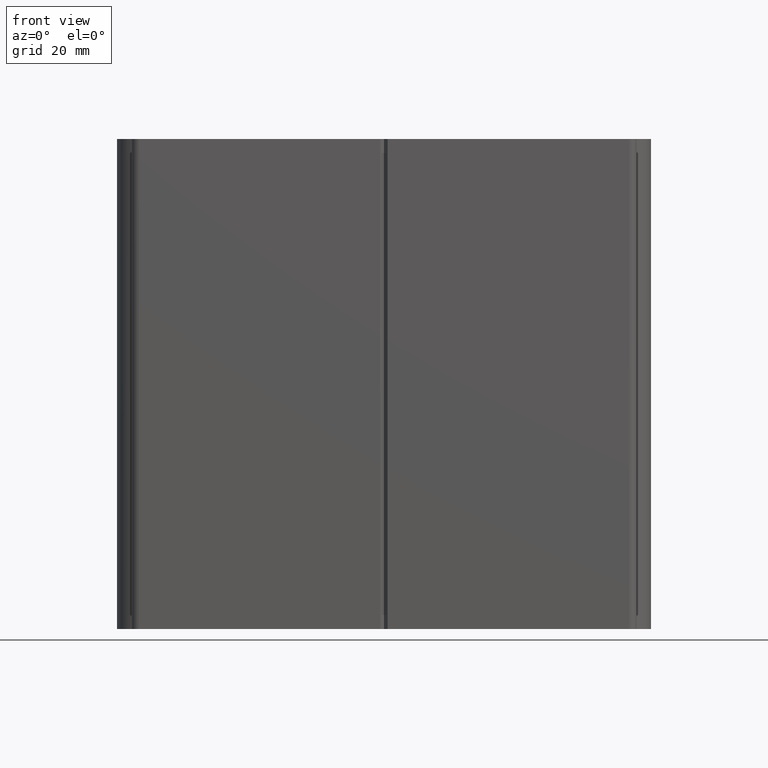
[diagram: clean part render]
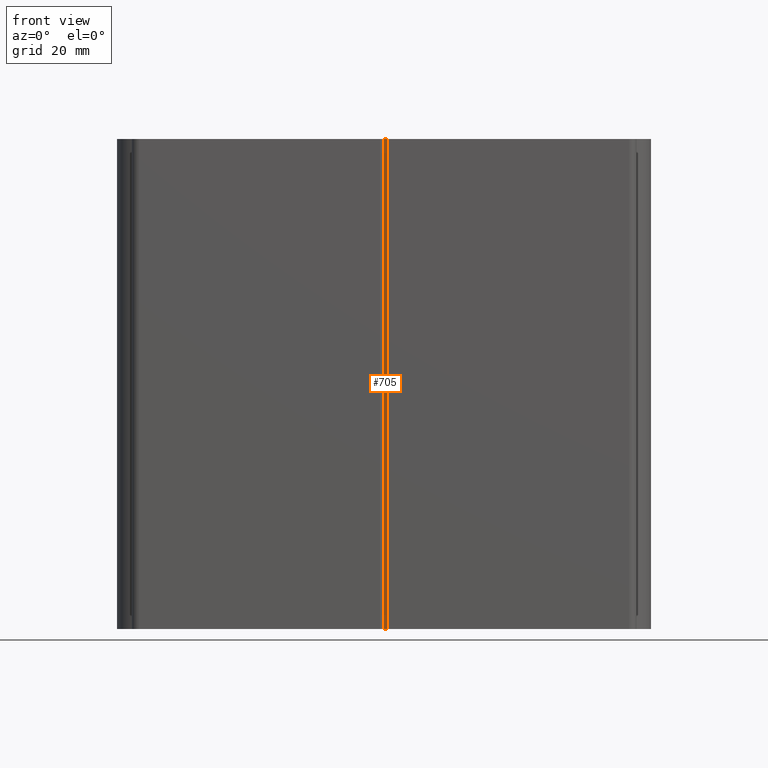
[diagram: same view with one face highlighted and labeled with its STEP entity id]
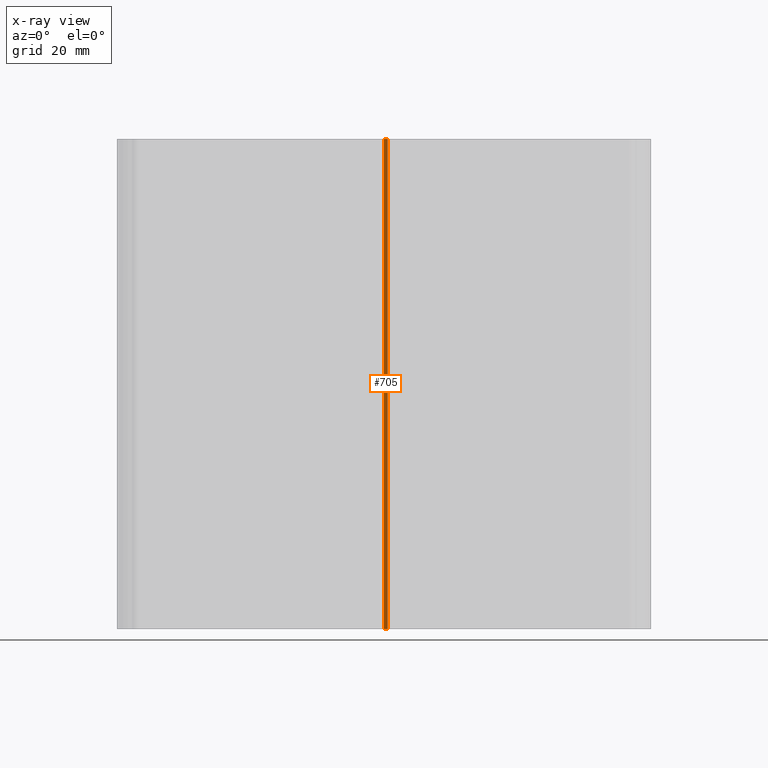
[diagram: x-ray of the same camera — body ghosted, the highlighted face saturated]
A machine part, front view. The second image highlights one B-rep face of the part: STEP entity #705.
The next image is the same camera in x-ray: the body ghosted, the highlighted face saturated — about 0% of this face is hidden behind the body in this view.
In plain terms, the highlighted planar face has unit normal (0.7071, 0.7071, 0).
Its self-contained STEP definition (entity closure, byte-faithful):
#46=PLANE('',#817);
#83=FACE_OUTER_BOUND('',#120,.T.);
#120=EDGE_LOOP('',(#628,#629,#630,#631));
#162=LINE('',#1152,#235);
#173=LINE('',#1180,#246);
#198=LINE('',#1233,#271);
#199=LINE('',#1234,#272);
#235=VECTOR('',#934,10.);
#246=VECTOR('',#957,10.);
#271=VECTOR('',#1014,10.);
#272=VECTOR('',#1015,10.);
#342=VERTEX_POINT('',#1149);
#343=VERTEX_POINT('',#1151);
#353=VERTEX_POINT('',#1177);
#354=VERTEX_POINT('',#1179);
#419=EDGE_CURVE('',#342,#343,#162,.T.);
#433=EDGE_CURVE('',#353,#354,#173,.T.);
#462=EDGE_CURVE('',#354,#342,#198,.T.);
#463=EDGE_CURVE('',#353,#343,#199,.T.);
#628=ORIENTED_EDGE('',*,*,#419,.F.);
#629=ORIENTED_EDGE('',*,*,#462,.F.);
#630=ORIENTED_EDGE('',*,*,#433,.F.);
#631=ORIENTED_EDGE('',*,*,#463,.T.);
#705=ADVANCED_FACE('',(#83),#46,.F.);
#817=AXIS2_PLACEMENT_3D('',#1232,#1012,#1013);
#934=DIRECTION('',(-0.707106781186548,0.707106781186547,0.));
#957=DIRECTION('',(0.707106781186548,-0.707106781186547,0.));
#1012=DIRECTION('center_axis',(0.707106781186547,0.707106781186548,0.));
#1013=DIRECTION('ref_axis',(0.707106781186548,-0.707106781186547,0.));
#1014=DIRECTION('',(0.,0.,-1.));
#1015=DIRECTION('',(0.,0.,-1.));
#1149=CARTESIAN_POINT('',(0.75,-10.,0.));
#1151=CARTESIAN_POINT('',(0.,-9.25,0.));
#1152=CARTESIAN_POINT('',(-2.3125,-6.9375,0.));
#1177=CARTESIAN_POINT('',(0.,-9.25,100.));
#1179=CARTESIAN_POINT('',(0.75,-10.,100.));
#1180=CARTESIAN_POINT('',(-2.3125,-6.9375,100.));
#1232=CARTESIAN_POINT('Origin',(0.,-9.25,100.));
#1233=CARTESIAN_POINT('',(0.749999999999997,-10.,50.));
#1234=CARTESIAN_POINT('',(0.,-9.25,100.));